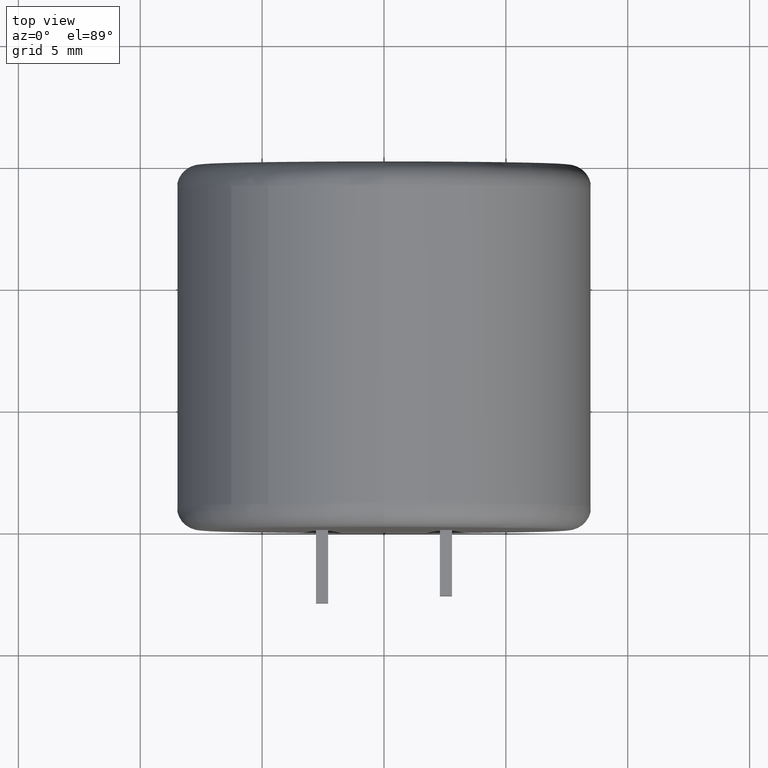
[diagram: clean part render]
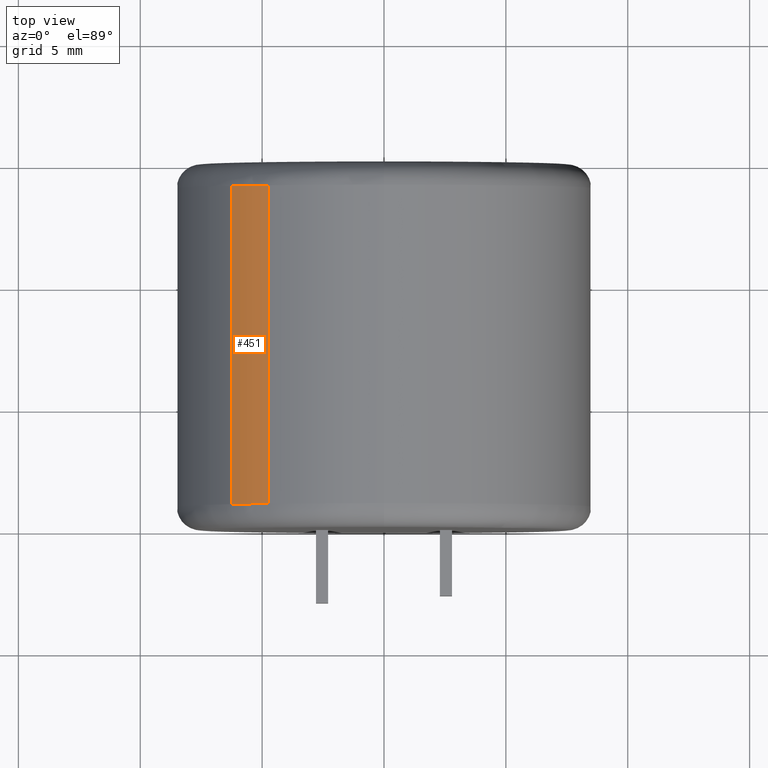
[diagram: same view with one face highlighted and labeled with its STEP entity id]
A machine part, top view. The second image highlights one B-rep face of the part: STEP entity #451.
In plain terms, the highlighted cylindrical surface (partial cylindrical patch) has radius 8.51 mm, axis along (-0, -1, -0).
Its self-contained STEP definition (entity closure, byte-faithful):
#10 = EDGE_LOOP ( 'NONE', ( #1762, #2179, #1493, #2316 ) ) ;
#74 = FACE_OUTER_BOUND ( 'NONE', #10, .T. ) ;
#173 = CIRCLE ( 'NONE', #2687, 8.509999999999999800 ) ;
#185 = CARTESIAN_POINT ( 'NONE',  ( -6.264571415937247400, 0.9674999999999995800, 5.759795567085865800 ) ) ;
#219 = CIRCLE ( 'NONE', #1656, 8.509999999999999800 ) ;
#338 = DIRECTION ( 'NONE',  ( -0.0000000000000000000, -1.000000000000000000, -0.0000000000000000000 ) ) ;
#401 = VERTEX_POINT ( 'NONE', #1838 ) ;
#451 = ADVANCED_FACE ( 'NONE', ( #74 ), #1873, .T. ) ;
#521 = EDGE_CURVE ( 'NONE', #599, #2757, #1837, .T. ) ;
#546 = EDGE_CURVE ( 'NONE', #401, #599, #173, .T. ) ;
#583 = VERTEX_POINT ( 'NONE', #686 ) ;
#599 = VERTEX_POINT ( 'NONE', #892 ) ;
#640 = VECTOR ( 'NONE', #1881, 1000.000000000000000 ) ;
#657 = VECTOR ( 'NONE', #2418, 1000.000000000000000 ) ;
#659 = AXIS2_PLACEMENT_3D ( 'NONE', #1385, #338, #1240 ) ;
#686 = CARTESIAN_POINT ( 'NONE',  ( -4.749180829721183300, 0.9674999999999995800, 7.061542426878762800 ) ) ;
#888 = EDGE_CURVE ( 'NONE', #2757, #583, #219, .T. ) ;
#892 = CARTESIAN_POINT ( 'NONE',  ( -6.264571415937244800, 14.03250000000000100, 5.759795567085869400 ) ) ;
#904 = CARTESIAN_POINT ( 'NONE',  ( -6.264571415937244800, 15.00000000000000000, 5.759795567085869400 ) ) ;
#1047 = DIRECTION ( 'NONE',  ( 0.0000000000000000000, 1.000000000000000000, 0.0000000000000000000 ) ) ;
#1240 = DIRECTION ( 'NONE',  ( 0.0000000000000000000, 0.0000000000000000000, -1.000000000000000000 ) ) ;
#1385 = CARTESIAN_POINT ( 'NONE',  ( 0.0000000000000000000, 15.00000000000000000, 0.0000000000000000000 ) ) ;
#1416 = LINE ( 'NONE', #1643, #640 ) ;
#1493 = ORIENTED_EDGE ( 'NONE', *, *, #2668, .T. ) ;
#1643 = CARTESIAN_POINT ( 'NONE',  ( -4.749180829721185900, 15.00000000000000000, 7.061542426878761000 ) ) ;
#1656 = AXIS2_PLACEMENT_3D ( 'NONE', #2346, #1047, #1960 ) ;
#1740 = DIRECTION ( 'NONE',  ( 0.0000000000000000000, 0.0000000000000000000, -1.000000000000000000 ) ) ;
#1762 = ORIENTED_EDGE ( 'NONE', *, *, #521, .T. ) ;
#1837 = LINE ( 'NONE', #904, #657 ) ;
#1838 = CARTESIAN_POINT ( 'NONE',  ( -4.749180829721185900, 14.03250000000000100, 7.061542426878761000 ) ) ;
#1873 = CYLINDRICAL_SURFACE ( 'NONE', #659, 8.509999999999999800 ) ;
#1881 = DIRECTION ( 'NONE',  ( 0.0000000000000000000, 1.000000000000000000, 0.0000000000000000000 ) ) ;
#1960 = DIRECTION ( 'NONE',  ( 0.0000000000000000000, 0.0000000000000000000, -1.000000000000000000 ) ) ;
#1962 = DIRECTION ( 'NONE',  ( -0.0000000000000000000, -1.000000000000000000, -0.0000000000000000000 ) ) ;
#2179 = ORIENTED_EDGE ( 'NONE', *, *, #888, .T. ) ;
#2316 = ORIENTED_EDGE ( 'NONE', *, *, #546, .T. ) ;
#2346 = CARTESIAN_POINT ( 'NONE',  ( 0.0000000000000000000, 0.9674999999999995800, 0.0000000000000000000 ) ) ;
#2390 = CARTESIAN_POINT ( 'NONE',  ( 0.0000000000000000000, 14.03250000000000100, 0.0000000000000000000 ) ) ;
#2418 = DIRECTION ( 'NONE',  ( -0.0000000000000000000, -1.000000000000000000, -0.0000000000000000000 ) ) ;
#2668 = EDGE_CURVE ( 'NONE', #583, #401, #1416, .T. ) ;
#2687 = AXIS2_PLACEMENT_3D ( 'NONE', #2390, #1962, #1740 ) ;
#2757 = VERTEX_POINT ( 'NONE', #185 ) ;